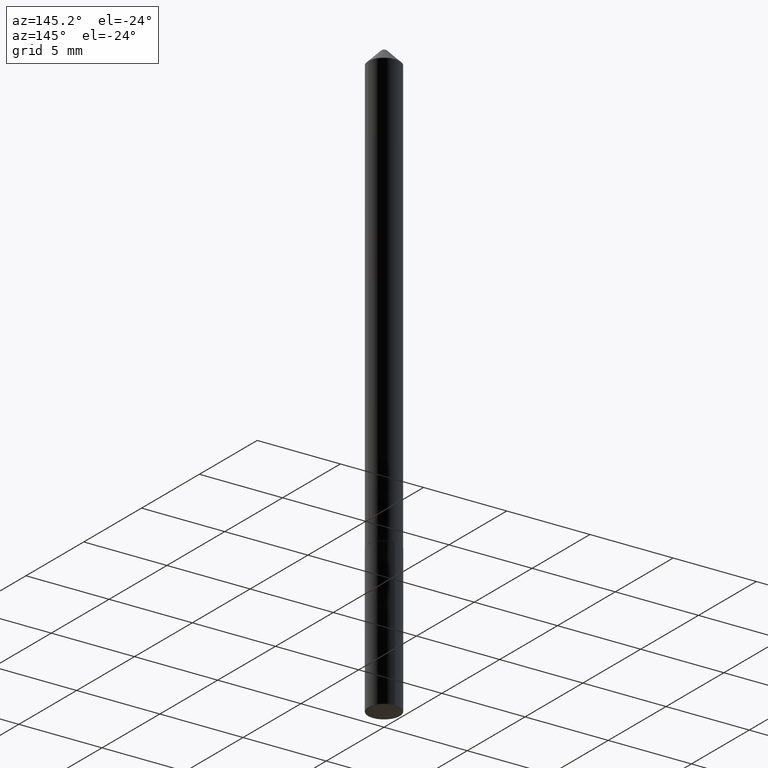
[diagram: clean part render]
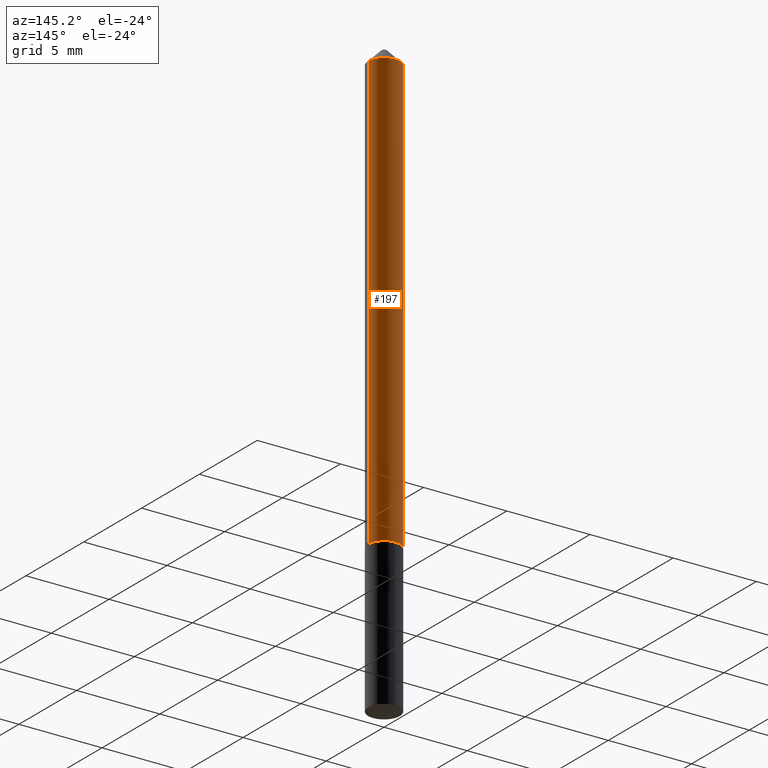
[diagram: same view with one face highlighted and labeled with its STEP entity id]
A machine part, auxiliary view. The second image highlights one B-rep face of the part: STEP entity #197.
In plain terms, the highlighted cylindrical surface (edge-blend (fillet) strip) has radius 0.95 mm, axis along (-0, 0, 1).
Its self-contained STEP definition (entity closure, byte-faithful):
#2 = DIRECTION ( 'NONE',  ( -2.445468806185136877E-29, 3.491481338843145188E-15, 1.000000000000000000 ) ) ;
#19 = CARTESIAN_POINT ( 'NONE',  ( 2.588528731346966904E-29, -3.695732997165469783E-15, -1.058499999999999996 ) ) ;
#24 = EDGE_CURVE ( 'NONE', #41, #289, #222, .T. ) ;
#41 = VERTEX_POINT ( 'NONE', #286 ) ;
#57 = CIRCLE ( 'NONE', #139, 0.03740000000000000269 ) ;
#71 = VERTEX_POINT ( 'NONE', #165 ) ;
#73 = CARTESIAN_POINT ( 'NONE',  ( 0.03740000000000000269, -3.702715959843154023E-16, -0.03125000000000020123 ) ) ;
#74 = DIRECTION ( 'NONE',  ( -2.445468806185136597E-29, 3.491481338843145583E-15, 1.000000000000000000 ) ) ;
#81 = DIRECTION ( 'NONE',  ( 1.000000000000000000, -6.982962677686263555E-15, 0.000000000000000000 ) ) ;
#96 = ORIENTED_EDGE ( 'NONE', *, *, #24, .T. ) ;
#103 = FACE_OUTER_BOUND ( 'NONE', #276, .T. ) ;
#107 = CARTESIAN_POINT ( 'NONE',  ( -0.03740000000000013453, -3.429990013991191210E-15, -1.058499999999999996 ) ) ;
#114 = DIRECTION ( 'NONE',  ( 1.000000000000000000, -6.982962677686266711E-15, 0.000000000000000000 ) ) ;
#120 = EDGE_CURVE ( 'NONE', #175, #71, #57, .T. ) ;
#124 = ORIENTED_EDGE ( 'NONE', *, *, #120, .F. ) ;
#134 = CARTESIAN_POINT ( 'NONE',  ( 7.642090019328601786E-31, -1.091087918388490144E-16, -0.03125000000000020123 ) ) ;
#139 = AXIS2_PLACEMENT_3D ( 'NONE', #134, #281, #114 ) ;
#155 = ORIENTED_EDGE ( 'NONE', *, *, #275, .T. ) ;
#165 = CARTESIAN_POINT ( 'NONE',  ( -0.03740000000000000269, -1.636677911327879883E-15, -0.03125000000000020123 ) ) ;
#175 = VERTEX_POINT ( 'NONE', #73 ) ;
#193 = DIRECTION ( 'NONE',  ( -2.445468806185136597E-29, 3.491481338843145583E-15, 1.000000000000000000 ) ) ;
#197 = ADVANCED_FACE ( 'NONE', ( #103 ), #220, .T. ) ;
#220 = CYLINDRICAL_SURFACE ( 'NONE', #372, 0.03740000000000007208 ) ;
#222 = CIRCLE ( 'NONE', #284, 0.03740000000000013453 ) ;
#224 = VECTOR ( 'NONE', #2, 39.37007874015748143 ) ;
#239 = ORIENTED_EDGE ( 'NONE', *, *, #263, .F. ) ;
#263 = EDGE_CURVE ( 'NONE', #41, #175, #362, .T. ) ;
#270 = CARTESIAN_POINT ( 'NONE',  ( 0.03740000000000007208, -2.611628041454668440E-16, 1.823690114147683585E-30 ) ) ;
#275 = EDGE_CURVE ( 'NONE', #289, #71, #331, .T. ) ;
#276 = EDGE_LOOP ( 'NONE', ( #96, #155, #124, #239 ) ) ;
#279 = DIRECTION ( 'NONE',  ( 1.000000000000000000, -6.982962677686265922E-15, 4.876176775795935793E-29 ) ) ;
#281 = DIRECTION ( 'NONE',  ( -2.445468806185136597E-29, 3.491481338843145583E-15, 1.000000000000000000 ) ) ;
#284 = AXIS2_PLACEMENT_3D ( 'NONE', #19, #193, #81 ) ;
#286 = CARTESIAN_POINT ( 'NONE',  ( 0.03740000000000013453, -3.956895801310936972E-15, -1.058499999999999996 ) ) ;
#289 = VERTEX_POINT ( 'NONE', #107 ) ;
#307 = VECTOR ( 'NONE', #359, 39.37007874015748143 ) ;
#331 = LINE ( 'NONE', #344, #307 ) ;
#340 = CARTESIAN_POINT ( 'NONE',  ( 0.000000000000000000, 0.000000000000000000, 0.000000000000000000 ) ) ;
#344 = CARTESIAN_POINT ( 'NONE',  ( -0.03740000000000007208, 2.657429831742779816E-16, -1.839681723755338193E-30 ) ) ;
#359 = DIRECTION ( 'NONE',  ( -2.445468806185136877E-29, 3.491481338843145188E-15, 1.000000000000000000 ) ) ;
#362 = LINE ( 'NONE', #270, #224 ) ;
#372 = AXIS2_PLACEMENT_3D ( 'NONE', #340, #74, #279 ) ;